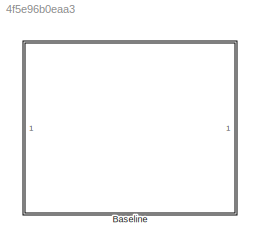
MODEL slx_4f5e96b0eaa3
KIND library
CONFIG AbsTol = auto
CONFIG EnableMultiTasking = off
CONFIG FixedStep = auto
CONFIG MaxStep = auto
CONFIG MinStep = auto
CONFIG RelTol = 1e-3
CONFIG SampleTimeConstraint = Unconstrained
CONFIG SolverName = VariableStepAuto
CONFIG StartTime = 0.0
CONFIG StopTime = 10.0
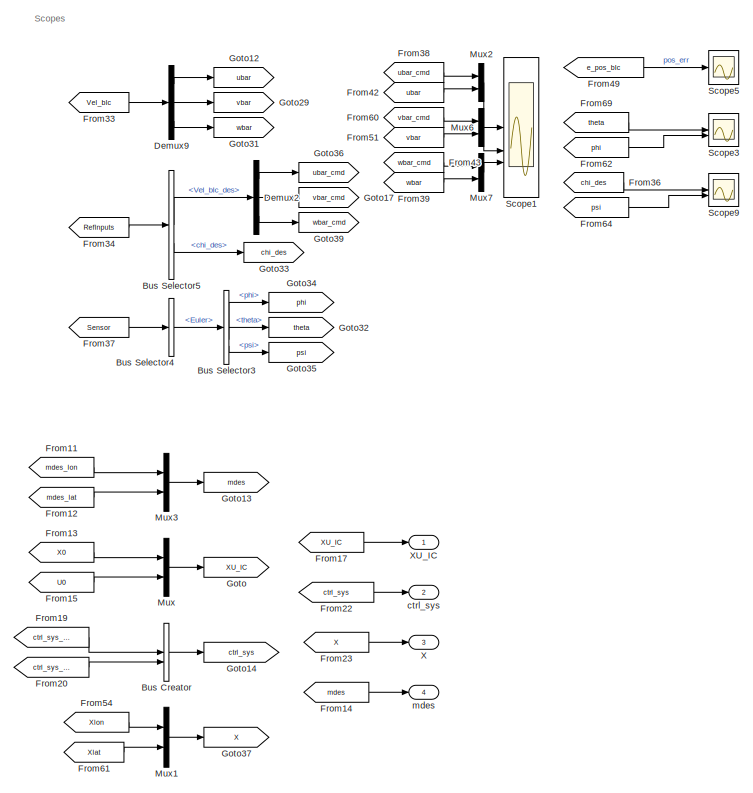
[diagram: Baseline - part 1/2, right side, full height]
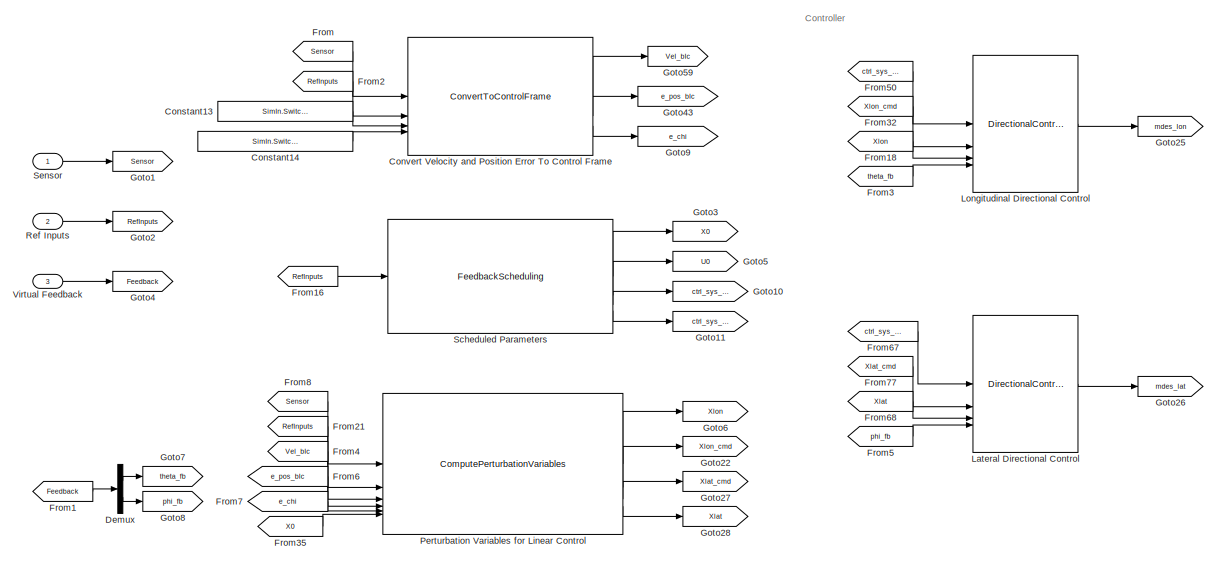
[diagram: Baseline - part 2/2, middle left region]
BLOCK [SubSystem] Baseline
BLOCK [BusCreator] Baseline/Bus Creator
  DisplayOption = bar
  InheritFromInputs = on
  Inputs = 2
BLOCK [BusSelector] Baseline/Bus Selector3
  OutputSignals = phi,theta,psi
BLOCK [BusSelector] Baseline/Bus Selector4
  OutputSignals = Euler
BLOCK [BusSelector] Baseline/Bus Selector5
  OutputSignals = Vel_bIc_des,chi_des
BLOCK [Constant] Baseline/Constant13
  Value = SimIn.Switches.RefTrajOn
BLOCK [Constant] Baseline/Constant14
  Value = SimIn.Switches.PositionError
BLOCK [Reference] Baseline/Convert Velocity and Position Error To Control Frame  REF=ComponentsLib/ConvertToControlFrame
  SourceBlock = ComponentsLib/ConvertToControlFrame
  SourceProductName = GUAM Controller Blockset
  SourceType = SubSystem
BLOCK [Demux] Baseline/Demux
  Outputs = 2
BLOCK [Demux] Baseline/Demux2
  Outputs = 3
BLOCK [Demux] Baseline/Demux9
  Outputs = 3
BLOCK [From] Baseline/From
  GotoTag = Sensor
BLOCK [From] Baseline/From1
  GotoTag = Feedback
BLOCK [From] Baseline/From11
  GotoTag = mdes_lon
BLOCK [From] Baseline/From12
  GotoTag = mdes_lat
BLOCK [From] Baseline/From13
  GotoTag = X0
BLOCK [From] Baseline/From14
  GotoTag = mdes
BLOCK [From] Baseline/From15
  GotoTag = U0
BLOCK [From] Baseline/From16
  GotoTag = RefInputs
BLOCK [From] Baseline/From17
  GotoTag = XU_IC
BLOCK [From] Baseline/From18
  GotoTag = Xlon
BLOCK [From] Baseline/From19
  GotoTag = ctrl_sys_lon
BLOCK [From] Baseline/From2
  GotoTag = RefInputs
BLOCK [From] Baseline/From20
  GotoTag = ctrl_sys_lat
BLOCK [From] Baseline/From21
  GotoTag = RefInputs
BLOCK [From] Baseline/From22
  GotoTag = ctrl_sys
BLOCK [From] Baseline/From23
  GotoTag = X
BLOCK [From] Baseline/From3
  GotoTag = theta_fb
BLOCK [From] Baseline/From32
  GotoTag = Xlon_cmd
BLOCK [From] Baseline/From33
  GotoTag = Vel_bIc
BLOCK [From] Baseline/From34
  GotoTag = RefInputs
BLOCK [From] Baseline/From35
  GotoTag = X0
BLOCK [From] Baseline/From36
  GotoTag = chi_des
BLOCK [From] Baseline/From37
  GotoTag = Sensor
BLOCK [From] Baseline/From38
  GotoTag = ubar_cmd
BLOCK [From] Baseline/From39
  GotoTag = wbar
BLOCK [From] Baseline/From4
  GotoTag = Vel_bIc
BLOCK [From] Baseline/From42
  GotoTag = ubar
BLOCK [From] Baseline/From43
  GotoTag = wbar_cmd
BLOCK [From] Baseline/From49
  GotoTag = e_pos_bIc
BLOCK [From] Baseline/From5
  GotoTag = phi_fb
BLOCK [From] Baseline/From50
  GotoTag = ctrl_sys_lon
BLOCK [From] Baseline/From51
  GotoTag = vbar
BLOCK [From] Baseline/From54
  GotoTag = Xlon
BLOCK [From] Baseline/From6
  GotoTag = e_pos_bIc
BLOCK [From] Baseline/From60
  GotoTag = vbar_cmd
BLOCK [From] Baseline/From61
  GotoTag = Xlat
BLOCK [From] Baseline/From62
  GotoTag = phi
BLOCK [From] Baseline/From64
  GotoTag = psi
BLOCK [From] Baseline/From67
  GotoTag = ctrl_sys_lat
BLOCK [From] Baseline/From68
  GotoTag = Xlat
BLOCK [From] Baseline/From69
  GotoTag = theta
BLOCK [From] Baseline/From7
  GotoTag = e_chi
BLOCK [From] Baseline/From77
  GotoTag = Xlat_cmd
BLOCK [From] Baseline/From8
  GotoTag = Sensor
BLOCK [Goto] Baseline/Goto
  GotoTag = XU_IC
BLOCK [Goto] Baseline/Goto1
  GotoTag = Sensor
BLOCK [Goto] Baseline/Goto10
  GotoTag = ctrl_sys_lon
BLOCK [Goto] Baseline/Goto11
  GotoTag = ctrl_sys_lat
BLOCK [Goto] Baseline/Goto12
  GotoTag = ubar
BLOCK [Goto] Baseline/Goto13
  GotoTag = mdes
BLOCK [Goto] Baseline/Goto14
  GotoTag = ctrl_sys
BLOCK [Goto] Baseline/Goto17
  GotoTag = vbar_cmd
BLOCK [Goto] Baseline/Goto2
  GotoTag = RefInputs
BLOCK [Goto] Baseline/Goto22
  GotoTag = Xlon_cmd
BLOCK [Goto] Baseline/Goto25
  GotoTag = mdes_lon
BLOCK [Goto] Baseline/Goto26
  GotoTag = mdes_lat
BLOCK [Goto] Baseline/Goto27
  GotoTag = Xlat_cmd
BLOCK [Goto] Baseline/Goto28
  GotoTag = Xlat
BLOCK [Goto] Baseline/Goto29
  GotoTag = vbar
BLOCK [Goto] Baseline/Goto3
  GotoTag = X0
BLOCK [Goto] Baseline/Goto31
  GotoTag = wbar
BLOCK [Goto] Baseline/Goto32
  GotoTag = theta
BLOCK [Goto] Baseline/Goto33
  GotoTag = chi_des
BLOCK [Goto] Baseline/Goto34
  GotoTag = phi
BLOCK [Goto] Baseline/Goto35
  GotoTag = psi
BLOCK [Goto] Baseline/Goto36
  GotoTag = ubar_cmd
BLOCK [Goto] Baseline/Goto37
  GotoTag = X
BLOCK [Goto] Baseline/Goto39
  GotoTag = wbar_cmd
BLOCK [Goto] Baseline/Goto4
  GotoTag = Feedback
BLOCK [Goto] Baseline/Goto43
  GotoTag = e_pos_bIc
BLOCK [Goto] Baseline/Goto5
  GotoTag = U0
BLOCK [Goto] Baseline/Goto59
  GotoTag = Vel_bIc
BLOCK [Goto] Baseline/Goto6
  GotoTag = Xlon
BLOCK [Goto] Baseline/Goto7
  GotoTag = theta_fb
BLOCK [Goto] Baseline/Goto8
  GotoTag = phi_fb
BLOCK [Goto] Baseline/Goto9
  GotoTag = e_chi
BLOCK [Reference] Baseline/Lateral Directional Control  REF=ComponentsLib/DirectionalControl
  SourceBlock = ComponentsLib/DirectionalControl
  SourceProductName = GUAM Controller Blockset
  SourceType = SubSystem
BLOCK [Reference] Baseline/Longitudinal Directional Control  REF=ComponentsLib/DirectionalControl
  SourceBlock = ComponentsLib/DirectionalControl
  SourceProductName = GUAM Controller Blockset
  SourceType = SubSystem
BLOCK [Mux] Baseline/Mux
  DisplayOption = bar
  Inputs = 2
BLOCK [Mux] Baseline/Mux1
  DisplayOption = bar
  Inputs = 2
BLOCK [Mux] Baseline/Mux2
  DisplayOption = bar
  Inputs = 2
BLOCK [Mux] Baseline/Mux3
  DisplayOption = bar
  Inputs = 2
BLOCK [Mux] Baseline/Mux6
  DisplayOption = bar
  Inputs = 2
BLOCK [Mux] Baseline/Mux7
  DisplayOption = bar
  Inputs = 2
BLOCK [Reference] Baseline/Perturbation Variables for Linear Control  REF=ComponentsLib/ComputePerturbationVariables
  SourceBlock = ComponentsLib/ComputePerturbationVariables
  SourceProductName = GUAM Controller Blockset
  SourceType = SubSystem
BLOCK [Inport] Baseline/Ref Inputs
  OutDataTypeStr = Bus: BUS_REF_INPUT
  Port = 2
BLOCK [Reference] Baseline/Scheduled Parameters  REF=ComponentsLib/FeedbackScheduling
  SourceBlock = ComponentsLib/FeedbackScheduling
  SourceProductName = GUAM Controller Blockset
  SourceType = SubSystem
BLOCK [Scope] Baseline/Scope1
  Floating = off
  NumInputPorts = 3
  ScopeSpecificationString = Simulink.scopes.TimeScopeBlockCfg('CurrentConfiguration', extmgr.ConfigurationSet(extmgr.Configuration('Core','General UI',true),extmgr.Configuration('Core','Source UI',true),extmgr.Configuration('Sources','WiredSimulink',true,'DataLoggingVariableName','ScopeData8'),extmgr.Configuration('Visuals','Time Domain',true,'SerializedDisplays',{struct('MinYLimReal','19.5304','MaxYLimReal','237.77826','YLa...<+2755ch>
BLOCK [Scope] Baseline/Scope3
  Floating = off
  NumInputPorts = 2
  ScopeSpecificationString = Simulink.scopes.TimeScopeBlockCfg('CurrentConfiguration', extmgr.ConfigurationSet(extmgr.Configuration('Core','General UI',true),extmgr.Configuration('Core','Source UI',true),extmgr.Configuration('Sources','WiredSimulink',true,'DataLoggingVariableName','ScopeData9'),extmgr.Configuration('Visuals','Time Domain',true,'SerializedDisplays',{struct('MinYLimReal','-0.09727','MaxYLimReal','0.89368','YLab...<+1445ch>
BLOCK [Scope] Baseline/Scope5
  Floating = off
  NumInputPorts = 1
  ScopeSpecificationString = Simulink.scopes.TimeScopeBlockCfg('CurrentConfiguration', extmgr.ConfigurationSet(extmgr.Configuration('Core','General UI',true),extmgr.Configuration('Core','Source UI',true),extmgr.Configuration('Sources','WiredSimulink',true,'DataLoggingVariableName','ScopeData10'),extmgr.Configuration('Visuals','Time Domain',true,'SerializedDisplays',{struct('MinYLimReal','-104.85474','MaxYLimReal','86.42585','...<+1606ch>
BLOCK [Scope] Baseline/Scope9
  Floating = off
  NumInputPorts = 2
  ScopeSpecificationString = Simulink.scopes.TimeScopeBlockCfg('CurrentConfiguration', extmgr.ConfigurationSet(extmgr.Configuration('Core','General UI',true),extmgr.Configuration('Core','Source UI',true),extmgr.Configuration('Sources','WiredSimulink',true,'DataLoggingVariableName','ScopeData13'),extmgr.Configuration('Visuals','Time Domain',true,'SerializedDisplays',{struct('MinYLimReal','-0.20826','MaxYLimReal','1.8675','YLab...<+1453ch>
BLOCK [Inport] Baseline/Sensor
  OutDataTypeStr = Bus: SensorBus
BLOCK [Inport] Baseline/Virtual Feedback
  Port = 3
BLOCK [Outport] Baseline/X
  Port = 3
BLOCK [Outport] Baseline/XU_IC
BLOCK [Outport] Baseline/ctrl_sys
  Port = 2
BLOCK [Outport] Baseline/mdes
  Port = 4
ANNOTATION Baseline: Controller
ANNOTATION Baseline: Scopes
LINE Baseline/Bus Creator:1 -> Baseline/Goto14:1
LINE Baseline/Bus Selector3:1 -> Baseline/Goto34:1
LINE Baseline/Bus Selector3:2 -> Baseline/Goto32:1
LINE Baseline/Bus Selector3:3 -> Baseline/Goto35:1
LINE Baseline/Bus Selector4:1 -> Baseline/Bus Selector3:1
LINE Baseline/Bus Selector5:1 -> Baseline/Demux2:1
LINE Baseline/Bus Selector5:2 -> Baseline/Goto33:1
LINE Baseline/Constant13:1 -> Baseline/Convert Velocity and Position Error To Control Frame:3
LINE Baseline/Constant14:1 -> Baseline/Convert Velocity and Position Error To Control Frame:4
LINE Baseline/Convert Velocity and Position Error To Control Frame:1 -> Baseline/Goto59:1
LINE Baseline/Convert Velocity and Position Error To Control Frame:2 -> Baseline/Goto43:1
LINE Baseline/Convert Velocity and Position Error To Control Frame:3 -> Baseline/Goto9:1
LINE Baseline/Demux2:1 -> Baseline/Goto36:1
LINE Baseline/Demux2:2 -> Baseline/Goto17:1
LINE Baseline/Demux2:3 -> Baseline/Goto39:1
LINE Baseline/Demux9:1 -> Baseline/Goto12:1
LINE Baseline/Demux9:2 -> Baseline/Goto29:1
LINE Baseline/Demux9:3 -> Baseline/Goto31:1
LINE Baseline/Demux:1 -> Baseline/Goto7:1
LINE Baseline/Demux:2 -> Baseline/Goto8:1
LINE Baseline/From11:1 -> Baseline/Mux3:1
LINE Baseline/From12:1 -> Baseline/Mux3:2
LINE Baseline/From13:1 -> Baseline/Mux:1
LINE Baseline/From14:1 -> Baseline/mdes:1
LINE Baseline/From15:1 -> Baseline/Mux:2
LINE Baseline/From16:1 -> Baseline/Scheduled Parameters:1
LINE Baseline/From17:1 -> Baseline/XU_IC:1
LINE Baseline/From18:1 -> Baseline/Longitudinal Directional Control:3
LINE Baseline/From19:1 -> Baseline/Bus Creator:1
LINE Baseline/From1:1 -> Baseline/Demux:1
LINE Baseline/From20:1 -> Baseline/Bus Creator:2
LINE Baseline/From21:1 -> Baseline/Perturbation Variables for Linear Control:2
LINE Baseline/From22:1 -> Baseline/ctrl_sys:1
LINE Baseline/From23:1 -> Baseline/X:1
LINE Baseline/From2:1 -> Baseline/Convert Velocity and Position Error To Control Frame:2
LINE Baseline/From32:1 -> Baseline/Longitudinal Directional Control:2
LINE Baseline/From33:1 -> Baseline/Demux9:1
LINE Baseline/From34:1 -> Baseline/Bus Selector5:1
LINE Baseline/From35:1 -> Baseline/Perturbation Variables for Linear Control:6
LINE Baseline/From36:1 -> Baseline/Scope9:1
LINE Baseline/From37:1 -> Baseline/Bus Selector4:1
LINE Baseline/From38:1 -> Baseline/Mux2:1
LINE Baseline/From39:1 -> Baseline/Mux7:2
LINE Baseline/From3:1 -> Baseline/Longitudinal Directional Control:4
LINE Baseline/From42:1 -> Baseline/Mux2:2
LINE Baseline/From43:1 -> Baseline/Mux7:1
LINE Baseline/From49:1 -> Baseline/Scope5:1
LINE Baseline/From4:1 -> Baseline/Perturbation Variables for Linear Control:3
LINE Baseline/From50:1 -> Baseline/Longitudinal Directional Control:1
LINE Baseline/From51:1 -> Baseline/Mux6:2
LINE Baseline/From54:1 -> Baseline/Mux1:1
LINE Baseline/From5:1 -> Baseline/Lateral Directional Control:4
LINE Baseline/From60:1 -> Baseline/Mux6:1
LINE Baseline/From61:1 -> Baseline/Mux1:2
LINE Baseline/From62:1 -> Baseline/Scope3:2
LINE Baseline/From64:1 -> Baseline/Scope9:2
LINE Baseline/From67:1 -> Baseline/Lateral Directional Control:1
LINE Baseline/From68:1 -> Baseline/Lateral Directional Control:3
LINE Baseline/From69:1 -> Baseline/Scope3:1
LINE Baseline/From6:1 -> Baseline/Perturbation Variables for Linear Control:4
LINE Baseline/From77:1 -> Baseline/Lateral Directional Control:2
LINE Baseline/From7:1 -> Baseline/Perturbation Variables for Linear Control:5
LINE Baseline/From8:1 -> Baseline/Perturbation Variables for Linear Control:1
LINE Baseline/From:1 -> Baseline/Convert Velocity and Position Error To Control Frame:1
LINE Baseline/Lateral Directional Control:1 -> Baseline/Goto26:1
LINE Baseline/Longitudinal Directional Control:1 -> Baseline/Goto25:1
LINE Baseline/Mux1:1 -> Baseline/Goto37:1
LINE Baseline/Mux2:1 -> Baseline/Scope1:1
LINE Baseline/Mux3:1 -> Baseline/Goto13:1
LINE Baseline/Mux6:1 -> Baseline/Scope1:2
LINE Baseline/Mux7:1 -> Baseline/Scope1:3
LINE Baseline/Mux:1 -> Baseline/Goto:1
LINE Baseline/Perturbation Variables for Linear Control:1 -> Baseline/Goto6:1
LINE Baseline/Perturbation Variables for Linear Control:2 -> Baseline/Goto22:1
LINE Baseline/Perturbation Variables for Linear Control:3 -> Baseline/Goto27:1
LINE Baseline/Perturbation Variables for Linear Control:4 -> Baseline/Goto28:1
LINE Baseline/Ref Inputs:1 -> Baseline/Goto2:1
LINE Baseline/Scheduled Parameters:1 -> Baseline/Goto3:1
LINE Baseline/Scheduled Parameters:2 -> Baseline/Goto5:1
LINE Baseline/Scheduled Parameters:3 -> Baseline/Goto10:1
LINE Baseline/Scheduled Parameters:4 -> Baseline/Goto11:1
LINE Baseline/Sensor:1 -> Baseline/Goto1:1
LINE Baseline/Virtual Feedback:1 -> Baseline/Goto4:1
